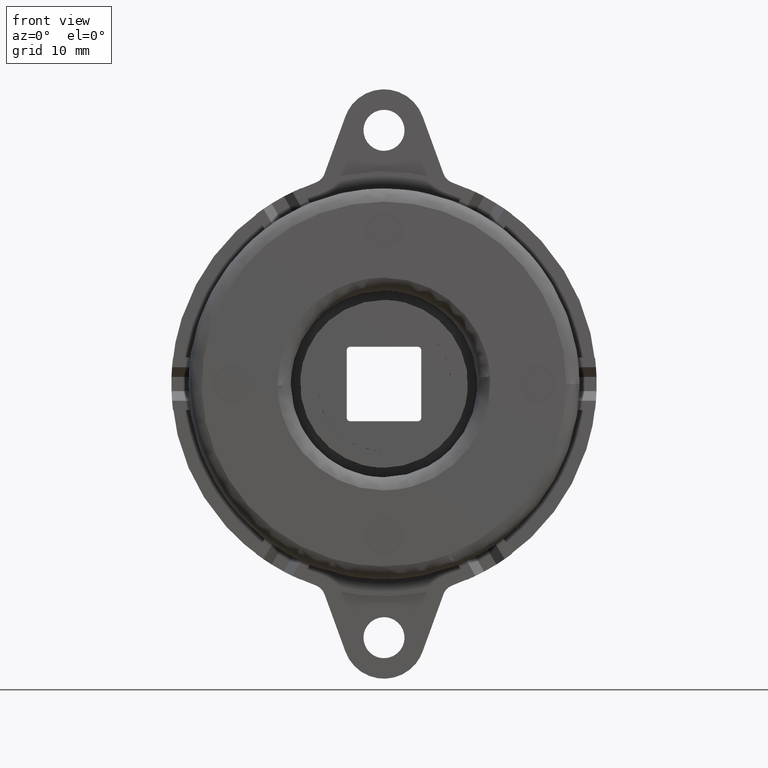
[diagram: clean part render]
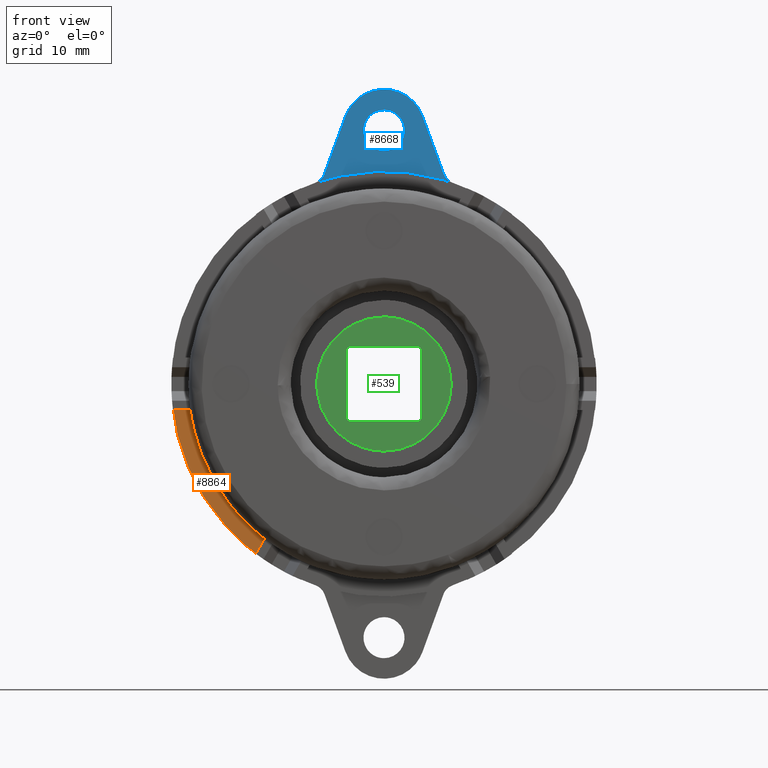
[diagram: same view with three faces highlighted in distinct colors, each labeled with its STEP entity id]
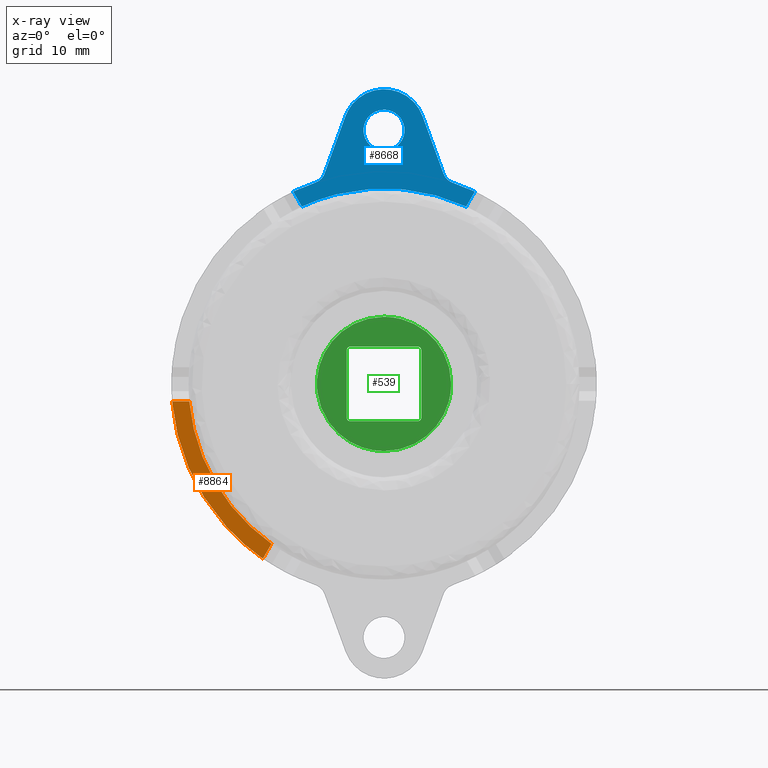
[diagram: x-ray of the same camera — body ghosted, the three highlighted faces saturated]
A machine part, front view with three faces highlighted in distinct colors.
The next image is the same camera in x-ray (body ghosted, the three faces saturated) — at least one of them is partly hidden behind the body in this view.
Their STEP definitions:

[orange] entity #8864 — the highlighted face is a freeform B-spline surface patch.
#2756=CARTESIAN_POINT('',(-22.608504583322169,-2.599999999999800,-13.239921469023169));
#2757=VERTEX_POINT('',#2756);
#2763=CARTESIAN_POINT('',(-15.082357673937750,-2.599999999999825,-21.423409789186501));
#2764=VERTEX_POINT('',#2763);
#2765=CARTESIAN_POINT('',(-22.608504583322162,-2.599999999999800,-13.239921469023162));
#2766=CARTESIAN_POINT('',(-19.733835824480611,-2.599999999999800,-18.148708989017646));
#2767=CARTESIAN_POINT('',(-15.082357673937750,-2.599999999999800,-21.423409789186479));
#2775=(BOUNDED_CURVE()B_SPLINE_CURVE(2,(#2765,#2766,#2767),.UNSPECIFIED.,.F.,.U.)B_SPLINE_CURVE_WITH_KNOTS((3,3),(0.507008794206972,1.0),.UNSPECIFIED.)CURVE()GEOMETRIC_REPRESENTATION_ITEM()RATIONAL_B_SPLINE_CURVE((0.953700125890361,0.954340166641431,1.0))REPRESENTATION_ITEM(''));
#2776=EDGE_CURVE('',#2757,#2764,#2775,.T.);
#4193=CARTESIAN_POINT('',(-26.094395950088600,-2.599999999999825,-2.350000000000000));
#4194=VERTEX_POINT('',#4193);
#4200=CARTESIAN_POINT('',(-26.094395950088590,-2.599999999999800,-2.349999999999986));
#4201=CARTESIAN_POINT('',(-25.568938217830404,-2.599999999999800,-8.184681753438641));
#4202=CARTESIAN_POINT('',(-22.608504583322162,-2.599999999999800,-13.239921469023162));
#4210=(BOUNDED_CURVE()B_SPLINE_CURVE(2,(#4200,#4201,#4202),.UNSPECIFIED.,.F.,.U.)B_SPLINE_CURVE_WITH_KNOTS((3,3),(0.0,0.507008794206972),.UNSPECIFIED.)CURVE()GEOMETRIC_REPRESENTATION_ITEM()RATIONAL_B_SPLINE_CURVE((1.0,0.953041886380954,0.953700125890361))REPRESENTATION_ITEM(''));
#4211=EDGE_CURVE('',#4194,#2757,#4210,.T.);
#6951=CARTESIAN_POINT('',(-28.402948790574548,-2.599999999999825,-2.350000000000000));
#6952=VERTEX_POINT('',#6951);
#6958=CARTESIAN_POINT('',(-28.402948790574548,-2.599999999999825,-2.350000000000000));
#6959=CARTESIAN_POINT('',(-26.094395950088600,-2.599999999999825,-2.350000000000000));
#6960=QUASI_UNIFORM_CURVE('',1,(#6958,#6959),.UNSPECIFIED.,.F.,.U.);
#6961=EDGE_CURVE('',#6952,#4194,#6960,.T.);
#7018=CARTESIAN_POINT('',(-16.236634094180701,-2.599999999999825,-23.422675195026049));
#7019=VERTEX_POINT('',#7018);
#7020=CARTESIAN_POINT('',(-15.082357673937750,-2.599999999999825,-21.423409789186501));
#7021=CARTESIAN_POINT('',(-16.236634094180701,-2.599999999999825,-23.422675195026049));
#7022=QUASI_UNIFORM_CURVE('',1,(#7020,#7021),.UNSPECIFIED.,.F.,.U.);
#7023=EDGE_CURVE('',#2764,#7019,#7022,.T.);
#8836=CARTESIAN_POINT('',(-28.402948790574548,-2.599999999999800,-2.349999999999985));
#8837=CARTESIAN_POINT('',(-27.293601805049224,-2.599999999999800,-15.757968349299615));
#8838=CARTESIAN_POINT('',(-16.236634094180712,-2.599999999999800,-23.422675195026049));
#8846=(BOUNDED_CURVE()B_SPLINE_CURVE(2,(#8836,#8837,#8838),.UNSPECIFIED.,.F.,.U.)CURVE()GEOMETRIC_REPRESENTATION_ITEM()QUASI_UNIFORM_CURVE()RATIONAL_B_SPLINE_CURVE((1.0,0.904304392807931,1.0))REPRESENTATION_ITEM(''));
#8847=EDGE_CURVE('',#6952,#7019,#8846,.T.);
#8852=CARTESIAN_POINT('',(-29.068311915900129,-2.599999999999800,-24.475256269250650));
#8853=CARTESIAN_POINT('',(-29.068311915900129,-2.599999999999800,-1.297419302584188));
#8854=CARTESIAN_POINT('',(-14.416993834039980,-2.599999999999800,-24.475256269250661));
#8855=CARTESIAN_POINT('',(-14.416993834039980,-2.599999999999800,-1.297419302584188));
#8856=B_SPLINE_SURFACE_WITH_KNOTS('',1,1,((#8852,#8854),(#8853,#8855)),.UNSPECIFIED.,.F.,.F.,.U.,(2,2),(2,2),(0.0,23.177836966666469),(0.0,14.651318081860159),.UNSPECIFIED.);
#8857=ORIENTED_EDGE('',*,*,#6961,.F.);
#8858=ORIENTED_EDGE('',*,*,#8847,.T.);
#8859=ORIENTED_EDGE('',*,*,#7023,.F.);
#8860=ORIENTED_EDGE('',*,*,#2776,.F.);
#8861=ORIENTED_EDGE('',*,*,#4211,.F.);
#8862=EDGE_LOOP('',(#8857,#8858,#8859,#8860,#8861));
#8863=FACE_OUTER_BOUND('',#8862,.T.);
#8864=ADVANCED_FACE('',(#8863),#8856,.F.);

[blue] entity #8668 — the highlighted face is a freeform B-spline surface patch.
#2557=CARTESIAN_POINT('',(0.0,-1.599999999999825,36.750000000000007));
#2558=VERTEX_POINT('',#2557);
#2559=CARTESIAN_POINT('',(-2.741522667755104,-1.599999999999825,34.215762513391297));
#2560=VERTEX_POINT('',#2559);
#2561=CARTESIAN_POINT('',(0.0,-1.599999999999825,36.750000000000007));
#2562=CARTESIAN_POINT('',(-2.542073851800144,-1.599999999999826,36.750000000000014));
#2563=CARTESIAN_POINT('',(-2.741522667755105,-1.599999999999825,34.215762513391297));
#2571=(BOUNDED_CURVE()B_SPLINE_CURVE(2,(#2561,#2562,#2563),.UNSPECIFIED.,.F.,.U.)B_SPLINE_CURVE_WITH_KNOTS((3,3),(0.0,0.236331300615293),.UNSPECIFIED.)CURVE()GEOMETRIC_REPRESENTATION_ITEM()RATIONAL_B_SPLINE_CURVE((1.0,0.723120658625669,0.969723356135348))REPRESENTATION_ITEM(''));
#2572=EDGE_CURVE('',#2558,#2560,#2571,.T.);
#2613=CARTESIAN_POINT('',(2.741522667755104,-1.599999999999826,33.784237486608703));
#2614=VERTEX_POINT('',#2613);
#2620=CARTESIAN_POINT('',(2.741522667755104,-1.599999999999826,33.784237486608703));
#2621=CARTESIAN_POINT('',(2.750000000000000,-1.599999999999825,33.891952205588531));
#2622=CARTESIAN_POINT('',(2.750000000000000,-1.599999999999825,34.0));
#2623=CARTESIAN_POINT('',(2.750000000000000,-1.599999999999824,36.750000000000007));
#2624=CARTESIAN_POINT('',(0.0,-1.599999999999825,36.750000000000007));
#2632=(BOUNDED_CURVE()B_SPLINE_CURVE(2,(#2620,#2621,#2622,#2623,#2624),.UNSPECIFIED.,.F.,.U.)B_SPLINE_CURVE_WITH_KNOTS((3,2,3),(0.736331300615293,0.750000000000000,1.0),.UNSPECIFIED.)CURVE()GEOMETRIC_REPRESENTATION_ITEM()RATIONAL_B_SPLINE_CURVE((0.969723356135349,0.983986122560879,1.0,0.707106781186548,1.0))REPRESENTATION_ITEM(''));
#2633=EDGE_CURVE('',#2614,#2558,#2632,.T.);
#2656=CARTESIAN_POINT('',(0.0,-1.599999999999825,31.250000000000000));
#2657=VERTEX_POINT('',#2656);
#2658=CARTESIAN_POINT('',(-2.741522667755105,-1.599999999999825,34.215762513391297));
#2659=CARTESIAN_POINT('',(-2.750000000000000,-1.599999999999825,34.108047794411469));
#2660=CARTESIAN_POINT('',(-2.750000000000000,-1.599999999999825,34.0));
#2661=CARTESIAN_POINT('',(-2.750000000000000,-1.599999999999824,31.250000000000000));
#2662=CARTESIAN_POINT('',(0.0,-1.599999999999825,31.250000000000000));
#2670=(BOUNDED_CURVE()B_SPLINE_CURVE(2,(#2658,#2659,#2660,#2661,#2662),.UNSPECIFIED.,.F.,.U.)B_SPLINE_CURVE_WITH_KNOTS((3,2,3),(0.236331300615293,0.250000000000000,0.500000000000000),.UNSPECIFIED.)CURVE()GEOMETRIC_REPRESENTATION_ITEM()RATIONAL_B_SPLINE_CURVE((0.969723356135348,0.983986122560879,1.0,0.707106781186548,1.0))REPRESENTATION_ITEM(''));
#2671=EDGE_CURVE('',#2560,#2657,#2670,.T.);
#2673=CARTESIAN_POINT('',(0.0,-1.599999999999825,31.250000000000000));
#2674=CARTESIAN_POINT('',(2.542073851800152,-1.599999999999825,31.249999999999993));
#2675=CARTESIAN_POINT('',(2.741522667755105,-1.599999999999826,33.784237486608703));
#2683=(BOUNDED_CURVE()B_SPLINE_CURVE(2,(#2673,#2674,#2675),.UNSPECIFIED.,.F.,.U.)B_SPLINE_CURVE_WITH_KNOTS((3,3),(0.500000000000000,0.736331300615293),.UNSPECIFIED.)CURVE()GEOMETRIC_REPRESENTATION_ITEM()RATIONAL_B_SPLINE_CURVE((1.0,0.723120658625668,0.969723356135350))REPRESENTATION_ITEM(''));
#2684=EDGE_CURVE('',#2657,#2614,#2683,.T.);
#3801=CARTESIAN_POINT('',(11.012038276150840,-1.599999999999825,23.773409789186498));
#3802=VERTEX_POINT('',#3801);
#3808=CARTESIAN_POINT('',(-11.012038348734460,-1.599999999999825,23.773409755565151));
#3809=VERTEX_POINT('',#3808);
#3810=CARTESIAN_POINT('',(11.012038276150850,-1.599999999999825,23.773409789186498));
#3811=CARTESIAN_POINT('',(-0.000000044078652,-1.599999999999825,28.874276200699970));
#3812=CARTESIAN_POINT('',(-11.012038348734469,-1.599999999999825,23.773409755565179));
#3820=(BOUNDED_CURVE()B_SPLINE_CURVE(2,(#3810,#3811,#3812),.UNSPECIFIED.,.F.,.U.)CURVE()GEOMETRIC_REPRESENTATION_ITEM()QUASI_UNIFORM_CURVE()RATIONAL_B_SPLINE_CURVE((1.0,0.907382052380757,1.0))REPRESENTATION_ITEM(''));
#3821=EDGE_CURVE('',#3802,#3809,#3820,.T.);
#8236=CARTESIAN_POINT('',(-9.204176096234390,-1.599999999999825,26.972822291883151));
#8237=VERTEX_POINT('',#8236);
#8243=CARTESIAN_POINT('',(-7.970697938407399,-1.599999999999825,28.181611669224299));
#8244=VERTEX_POINT('',#8243);
#8245=CARTESIAN_POINT('',(-9.204176096234404,-1.599999999999825,26.972822291883190));
#8246=CARTESIAN_POINT('',(-8.298129571266118,-1.599999999999826,27.282000607631741));
#8247=CARTESIAN_POINT('',(-7.970697938407403,-1.599999999999825,28.181611669224299));
#8255=(BOUNDED_CURVE()B_SPLINE_CURVE(2,(#8245,#8246,#8247),.UNSPECIFIED.,.F.,.U.)CURVE()GEOMETRIC_REPRESENTATION_ITEM()QUASI_UNIFORM_CURVE()RATIONAL_B_SPLINE_CURVE((1.0,0.901989463470576,1.0))REPRESENTATION_ITEM(''));
#8256=EDGE_CURVE('',#8237,#8244,#8255,.T.);
#8279=CARTESIAN_POINT('',(-5.168309414322491,-1.599999999999825,35.881110788291203));
#8280=VERTEX_POINT('',#8279);
#8281=CARTESIAN_POINT('',(-5.168309414322491,-1.599999999999825,35.881110788291203));
#8282=CARTESIAN_POINT('',(-7.970697938407399,-1.599999999999825,28.181611669224299));
#8283=QUASI_UNIFORM_CURVE('',1,(#8281,#8282),.UNSPECIFIED.,.F.,.U.);
#8284=EDGE_CURVE('',#8280,#8244,#8283,.T.);
#8330=CARTESIAN_POINT('',(5.168309499999910,-1.599999999999825,35.881110999999997));
#8331=VERTEX_POINT('',#8330);
#8332=CARTESIAN_POINT('',(5.168309499999910,-1.599999999999825,35.881110999999997));
#8333=CARTESIAN_POINT('',(3.851141312132095,-1.599999999999825,39.500000059390828));
#8334=CARTESIAN_POINT('',(-0.000000084818891,-1.599999999999825,39.500000000000000));
#8335=CARTESIAN_POINT('',(-3.851141481769878,-1.599999999999825,39.499999940609179));
#8336=CARTESIAN_POINT('',(-5.168309414322487,-1.599999999999825,35.881110788291203));
#8344=(BOUNDED_CURVE()B_SPLINE_CURVE(2,(#8332,#8333,#8334,#8335,#8336),.UNSPECIFIED.,.F.,.U.)B_SPLINE_CURVE_WITH_KNOTS((3,2,3),(0.0,0.500000000000000,1.0),.UNSPECIFIED.)CURVE()GEOMETRIC_REPRESENTATION_ITEM()RATIONAL_B_SPLINE_CURVE((1.0,0.819152048711731,1.0,0.819152048711731,1.0))REPRESENTATION_ITEM(''));
#8345=EDGE_CURVE('',#8331,#8280,#8344,.T.);
#8368=CARTESIAN_POINT('',(7.970697938407290,-1.599999999999825,28.181611669224349));
#8369=VERTEX_POINT('',#8368);
#8370=CARTESIAN_POINT('',(7.970697938407290,-1.599999999999825,28.181611669224349));
#8371=CARTESIAN_POINT('',(5.168309499999910,-1.599999999999825,35.881110999999997));
#8372=QUASI_UNIFORM_CURVE('',1,(#8370,#8371),.UNSPECIFIED.,.F.,.U.);
#8373=EDGE_CURVE('',#8369,#8331,#8372,.T.);
#8413=CARTESIAN_POINT('',(9.204176096234299,-1.599999999999825,26.972822291883151));
#8414=VERTEX_POINT('',#8413);
#8415=CARTESIAN_POINT('',(7.970697938407285,-1.599999999999825,28.181611669224349));
#8416=CARTESIAN_POINT('',(8.298129571265990,-1.599999999999825,27.282000607631744));
#8417=CARTESIAN_POINT('',(9.204176096234312,-1.599999999999825,26.972822291883190));
#8425=(BOUNDED_CURVE()B_SPLINE_CURVE(2,(#8415,#8416,#8417),.UNSPECIFIED.,.F.,.U.)CURVE()GEOMETRIC_REPRESENTATION_ITEM()QUASI_UNIFORM_CURVE()RATIONAL_B_SPLINE_CURVE((1.0,0.901989463470570,1.0))REPRESENTATION_ITEM(''));
#8426=EDGE_CURVE('',#8369,#8414,#8425,.T.);
#8609=CARTESIAN_POINT('',(-13.381729906752090,-1.599999999999800,40.285543152228243));
#8610=CARTESIAN_POINT('',(13.381730160004221,-1.599999999999800,40.285543152228243));
#8611=CARTESIAN_POINT('',(-13.381729906752090,-1.599999999999800,22.987866181516790));
#8612=CARTESIAN_POINT('',(13.381730160004221,-1.599999999999800,22.987866181516790));
#8613=B_SPLINE_SURFACE_WITH_KNOTS('',1,1,((#8609,#8611),(#8610,#8612)),.UNSPECIFIED.,.F.,.F.,.U.,(2,2),(2,2),(0.0,26.763460066756309),(0.0,17.297676970711450),.UNSPECIFIED.);
#8614=ORIENTED_EDGE('',*,*,#8256,.F.);
#8615=CARTESIAN_POINT('',(-12.166314878243019,-1.599999999999825,25.772675109181851));
#8616=VERTEX_POINT('',#8615);
#8617=CARTESIAN_POINT('',(-9.204176096234372,-1.599999999999825,26.972822291883141));
#8618=CARTESIAN_POINT('',(-10.718945070038785,-1.599999999999826,26.455924199828313));
#8619=CARTESIAN_POINT('',(-12.166314878243019,-1.599999999999825,25.772675109181868));
#8627=(BOUNDED_CURVE()B_SPLINE_CURVE(2,(#8617,#8618,#8619),.UNSPECIFIED.,.F.,.U.)CURVE()GEOMETRIC_REPRESENTATION_ITEM()QUASI_UNIFORM_CURVE()RATIONAL_B_SPLINE_CURVE((1.0,0.998426798926698,1.0))REPRESENTATION_ITEM(''));
#8628=EDGE_CURVE('',#8237,#8616,#8627,.T.);
#8629=ORIENTED_EDGE('',*,*,#8628,.T.);
#8630=CARTESIAN_POINT('',(-11.012038348734460,-1.599999999999825,23.773409755565151));
#8631=CARTESIAN_POINT('',(-12.166314878243019,-1.599999999999825,25.772675109181851));
#8632=QUASI_UNIFORM_CURVE('',1,(#8630,#8631),.UNSPECIFIED.,.F.,.U.);
#8633=EDGE_CURVE('',#3809,#8616,#8632,.T.);
#8634=ORIENTED_EDGE('',*,*,#8633,.F.);
#8635=ORIENTED_EDGE('',*,*,#3821,.F.);
#8636=CARTESIAN_POINT('',(12.166314696393821,-1.599999999999825,25.772675195026050));
#8637=VERTEX_POINT('',#8636);
#8638=CARTESIAN_POINT('',(12.166314696393821,-1.599999999999825,25.772675195026050));
#8639=CARTESIAN_POINT('',(11.012038276150840,-1.599999999999825,23.773409789186498));
#8640=QUASI_UNIFORM_CURVE('',1,(#8638,#8639),.UNSPECIFIED.,.F.,.U.);
#8641=EDGE_CURVE('',#8637,#3802,#8640,.T.);
#8642=ORIENTED_EDGE('',*,*,#8641,.F.);
#8643=CARTESIAN_POINT('',(12.166314696393840,-1.599999999999825,25.772675195026061));
#8644=CARTESIAN_POINT('',(10.718944974579998,-1.599999999999826,26.455924232402584));
#8645=CARTESIAN_POINT('',(9.204176096234308,-1.599999999999825,26.972822291883158));
#8653=(BOUNDED_CURVE()B_SPLINE_CURVE(2,(#8643,#8644,#8645),.UNSPECIFIED.,.F.,.U.)CURVE()GEOMETRIC_REPRESENTATION_ITEM()QUASI_UNIFORM_CURVE()RATIONAL_B_SPLINE_CURVE((1.0,0.998426799124512,1.0))REPRESENTATION_ITEM(''));
#8654=EDGE_CURVE('',#8637,#8414,#8653,.T.);
#8655=ORIENTED_EDGE('',*,*,#8654,.T.);
#8656=ORIENTED_EDGE('',*,*,#8426,.F.);
#8657=ORIENTED_EDGE('',*,*,#8373,.T.);
#8658=ORIENTED_EDGE('',*,*,#8345,.T.);
#8659=ORIENTED_EDGE('',*,*,#8284,.T.);
#8660=EDGE_LOOP('',(#8614,#8629,#8634,#8635,#8642,#8655,#8656,#8657,#8658,#8659));
#8661=FACE_OUTER_BOUND('',#8660,.T.);
#8662=ORIENTED_EDGE('',*,*,#2684,.F.);
#8663=ORIENTED_EDGE('',*,*,#2671,.F.);
#8664=ORIENTED_EDGE('',*,*,#2572,.F.);
#8665=ORIENTED_EDGE('',*,*,#2633,.F.);
#8666=EDGE_LOOP('',(#8662,#8663,#8664,#8665));
#8667=FACE_BOUND('',#8666,.T.);
#8668=ADVANCED_FACE('',(#8661,#8667),#8613,.F.);

[green] entity #539 — the highlighted face is a freeform B-spline surface patch.
#252=CARTESIAN_POINT('',(-8.930395924418910,-10.0,-1.117152018805907));
#253=VERTEX_POINT('',#252);
#254=CARTESIAN_POINT('',(0.0,-10.0,-9.0));
#255=VERTEX_POINT('',#254);
#256=CARTESIAN_POINT('',(-8.930395924418910,-10.0,-1.117152018805907));
#257=CARTESIAN_POINT('',(-7.944287401195272,-10.000000000000002,-9.000000000000002));
#258=CARTESIAN_POINT('',(0.0,-10.0,-9.0));
#266=(BOUNDED_CURVE()B_SPLINE_CURVE(2,(#256,#257,#258),.UNSPECIFIED.,.F.,.U.)B_SPLINE_CURVE_WITH_KNOTS((3,3),(0.271473928974004,0.500000000000000),.UNSPECIFIED.)CURVE()GEOMETRIC_REPRESENTATION_ITEM()RATIONAL_B_SPLINE_CURVE((0.954005430268310,0.732265053897617,1.0))REPRESENTATION_ITEM(''));
#267=EDGE_CURVE('',#253,#255,#266,.T.);
#308=CARTESIAN_POINT('',(8.999657307576937,-10.0,0.078538819554439));
#309=VERTEX_POINT('',#308);
#315=CARTESIAN_POINT('',(0.0,-10.0,-9.0));
#316=CARTESIAN_POINT('',(9.0,-10.0,-9.0));
#317=CARTESIAN_POINT('',(9.0,-10.0,0.0));
#318=CARTESIAN_POINT('',(9.0,-10.000000000000002,0.039270157455398));
#319=CARTESIAN_POINT('',(8.999657307576937,-10.0,0.078538819554439));
#327=(BOUNDED_CURVE()B_SPLINE_CURVE(2,(#315,#316,#317,#318,#319),.UNSPECIFIED.,.F.,.U.)B_SPLINE_CURVE_WITH_KNOTS((3,2,3),(0.500000000000000,0.750000000000000,0.751539894337691),.UNSPECIFIED.)CURVE()GEOMETRIC_REPRESENTATION_ITEM()RATIONAL_B_SPLINE_CURVE((1.0,0.707106781186547,1.0,0.998195901563204,0.996414028094148))REPRESENTATION_ITEM(''));
#328=EDGE_CURVE('',#255,#309,#327,.T.);
#355=CARTESIAN_POINT('',(0.0,-10.0,9.0));
#356=VERTEX_POINT('',#355);
#357=CARTESIAN_POINT('',(0.0,-10.0,9.0));
#358=CARTESIAN_POINT('',(-9.0,-10.0,9.0));
#359=CARTESIAN_POINT('',(-9.0,-10.0,0.0));
#360=CARTESIAN_POINT('',(-9.0,-10.0,-0.560744347889916));
#361=CARTESIAN_POINT('',(-8.930395924418910,-10.0,-1.117152018805907));
#369=(BOUNDED_CURVE()B_SPLINE_CURVE(2,(#357,#358,#359,#360,#361),.UNSPECIFIED.,.F.,.U.)B_SPLINE_CURVE_WITH_KNOTS((3,2,3),(0.0,0.250000000000000,0.271473928974004),.UNSPECIFIED.)CURVE()GEOMETRIC_REPRESENTATION_ITEM()RATIONAL_B_SPLINE_CURVE((1.0,0.707106781186547,1.0,0.974841727288930,0.954005430268310))REPRESENTATION_ITEM(''));
#370=EDGE_CURVE('',#356,#253,#369,.T.);
#372=CARTESIAN_POINT('',(8.999657307576937,-10.0,0.078538819554439));
#373=CARTESIAN_POINT('',(8.921800895217848,-10.000000000000004,9.000000000000002));
#374=CARTESIAN_POINT('',(0.0,-10.0,9.0));
#382=(BOUNDED_CURVE()B_SPLINE_CURVE(2,(#372,#373,#374),.UNSPECIFIED.,.F.,.U.)B_SPLINE_CURVE_WITH_KNOTS((3,3),(0.751539894337691,1.0),.UNSPECIFIED.)CURVE()GEOMETRIC_REPRESENTATION_ITEM()RATIONAL_B_SPLINE_CURVE((0.996414028094148,0.708910879623343,1.0))REPRESENTATION_ITEM(''));
#383=EDGE_CURVE('',#309,#356,#382,.T.);
#438=CARTESIAN_POINT('',(-9.898465100593777,-10.0,9.899099965112507));
#439=CARTESIAN_POINT('',(9.898711488313886,-10.0,9.899099965112507));
#440=CARTESIAN_POINT('',(-9.898465100593777,-10.0,-9.899100447910129));
#441=CARTESIAN_POINT('',(9.898711488313886,-10.0,-9.899100447910129));
#442=B_SPLINE_SURFACE_WITH_KNOTS('',1,1,((#438,#440),(#439,#441)),.UNSPECIFIED.,.F.,.F.,.U.,(2,2),(2,2),(0.0,19.797176588907661),(0.0,19.798200413022631),.UNSPECIFIED.);
#443=ORIENTED_EDGE('',*,*,#370,.T.);
#444=ORIENTED_EDGE('',*,*,#267,.T.);
#445=ORIENTED_EDGE('',*,*,#328,.T.);
#446=ORIENTED_EDGE('',*,*,#383,.T.);
#447=EDGE_LOOP('',(#443,#444,#445,#446));
#448=FACE_OUTER_BOUND('',#447,.T.);
#449=CARTESIAN_POINT('',(4.499999999999915,-10.0,5.0));
#450=VERTEX_POINT('',#449);
#451=CARTESIAN_POINT('',(-4.500000000000100,-10.0,5.0));
#452=VERTEX_POINT('',#451);
#453=CARTESIAN_POINT('',(4.499999999999915,-10.0,5.0));
#454=CARTESIAN_POINT('',(-4.500000000000100,-10.0,5.0));
#455=QUASI_UNIFORM_CURVE('',1,(#453,#454),.UNSPECIFIED.,.F.,.U.);
#456=EDGE_CURVE('',#450,#452,#455,.T.);
#457=ORIENTED_EDGE('',*,*,#456,.F.);
#458=CARTESIAN_POINT('',(4.999999999999920,-10.0,4.500000000000000));
#459=VERTEX_POINT('',#458);
#460=CARTESIAN_POINT('',(4.999999999999914,-10.0,4.500000000000000));
#461=CARTESIAN_POINT('',(4.999999999999914,-10.000000000000002,4.999999999999998));
#462=CARTESIAN_POINT('',(4.499999999999915,-10.0,4.999999999999999));
#470=(BOUNDED_CURVE()B_SPLINE_CURVE(2,(#460,#461,#462),.UNSPECIFIED.,.F.,.U.)CURVE()GEOMETRIC_REPRESENTATION_ITEM()QUASI_UNIFORM_CURVE()RATIONAL_B_SPLINE_CURVE((1.0,0.707106781186548,1.0))REPRESENTATION_ITEM(''));
#471=EDGE_CURVE('',#459,#450,#470,.T.);
#472=ORIENTED_EDGE('',*,*,#471,.F.);
#473=CARTESIAN_POINT('',(4.999999999999920,-10.0,-4.500000000000000));
#474=VERTEX_POINT('',#473);
#475=CARTESIAN_POINT('',(4.999999999999920,-10.0,-4.500000000000000));
#476=CARTESIAN_POINT('',(4.999999999999920,-10.0,4.500000000000000));
#477=QUASI_UNIFORM_CURVE('',1,(#475,#476),.UNSPECIFIED.,.F.,.U.);
#478=EDGE_CURVE('',#474,#459,#477,.T.);
#479=ORIENTED_EDGE('',*,*,#478,.F.);
#480=CARTESIAN_POINT('',(4.499999999999915,-10.0,-5.0));
#481=VERTEX_POINT('',#480);
#482=CARTESIAN_POINT('',(4.499999999999915,-10.0,-4.999999999999999));
#483=CARTESIAN_POINT('',(4.999999999999914,-10.000000000000002,-4.999999999999998));
#484=CARTESIAN_POINT('',(4.999999999999914,-10.0,-4.500000000000000));
#492=(BOUNDED_CURVE()B_SPLINE_CURVE(2,(#482,#483,#484),.UNSPECIFIED.,.F.,.U.)CURVE()GEOMETRIC_REPRESENTATION_ITEM()QUASI_UNIFORM_CURVE()RATIONAL_B_SPLINE_CURVE((1.0,0.707106781186548,1.0))REPRESENTATION_ITEM(''));
#493=EDGE_CURVE('',#481,#474,#492,.T.);
#494=ORIENTED_EDGE('',*,*,#493,.F.);
#495=CARTESIAN_POINT('',(-4.500000000000100,-10.0,-5.0));
#496=VERTEX_POINT('',#495);
#497=CARTESIAN_POINT('',(-4.500000000000100,-10.0,-5.0));
#498=CARTESIAN_POINT('',(4.499999999999915,-10.0,-5.0));
#499=QUASI_UNIFORM_CURVE('',1,(#497,#498),.UNSPECIFIED.,.F.,.U.);
#500=EDGE_CURVE('',#496,#481,#499,.T.);
#501=ORIENTED_EDGE('',*,*,#500,.F.);
#502=CARTESIAN_POINT('',(-5.0,-10.0,-4.500000000000000));
#503=VERTEX_POINT('',#502);
#504=CARTESIAN_POINT('',(-5.0,-10.0,-4.500000000000000));
#505=CARTESIAN_POINT('',(-5.000000000000100,-10.000000000000002,-4.999999999999998));
#506=CARTESIAN_POINT('',(-4.500000000000100,-10.0,-4.999999999999999));
#514=(BOUNDED_CURVE()B_SPLINE_CURVE(2,(#504,#505,#506),.UNSPECIFIED.,.F.,.U.)CURVE()GEOMETRIC_REPRESENTATION_ITEM()QUASI_UNIFORM_CURVE()RATIONAL_B_SPLINE_CURVE((1.0,0.707106781186548,1.0))REPRESENTATION_ITEM(''));
#515=EDGE_CURVE('',#503,#496,#514,.T.);
#516=ORIENTED_EDGE('',*,*,#515,.F.);
#517=CARTESIAN_POINT('',(-5.000000000000100,-10.0,4.500000000000000));
#518=VERTEX_POINT('',#517);
#519=CARTESIAN_POINT('',(-5.000000000000100,-10.0,4.500000000000000));
#520=CARTESIAN_POINT('',(-5.0,-10.0,-4.500000000000000));
#521=QUASI_UNIFORM_CURVE('',1,(#519,#520),.UNSPECIFIED.,.F.,.U.);
#522=EDGE_CURVE('',#518,#503,#521,.T.);
#523=ORIENTED_EDGE('',*,*,#522,.F.);
#524=CARTESIAN_POINT('',(-4.500000000000100,-10.0,4.999999999999999));
#525=CARTESIAN_POINT('',(-5.000000000000100,-10.000000000000002,4.999999999999998));
#526=CARTESIAN_POINT('',(-5.000000000000100,-10.0,4.500000000000000));
#534=(BOUNDED_CURVE()B_SPLINE_CURVE(2,(#524,#525,#526),.UNSPECIFIED.,.F.,.U.)CURVE()GEOMETRIC_REPRESENTATION_ITEM()QUASI_UNIFORM_CURVE()RATIONAL_B_SPLINE_CURVE((1.0,0.707106781186548,1.0))REPRESENTATION_ITEM(''));
#535=EDGE_CURVE('',#452,#518,#534,.T.);
#536=ORIENTED_EDGE('',*,*,#535,.F.);
#537=EDGE_LOOP('',(#457,#472,#479,#494,#501,#516,#523,#536));
#538=FACE_BOUND('',#537,.T.);
#539=ADVANCED_FACE('',(#448,#538),#442,.F.);